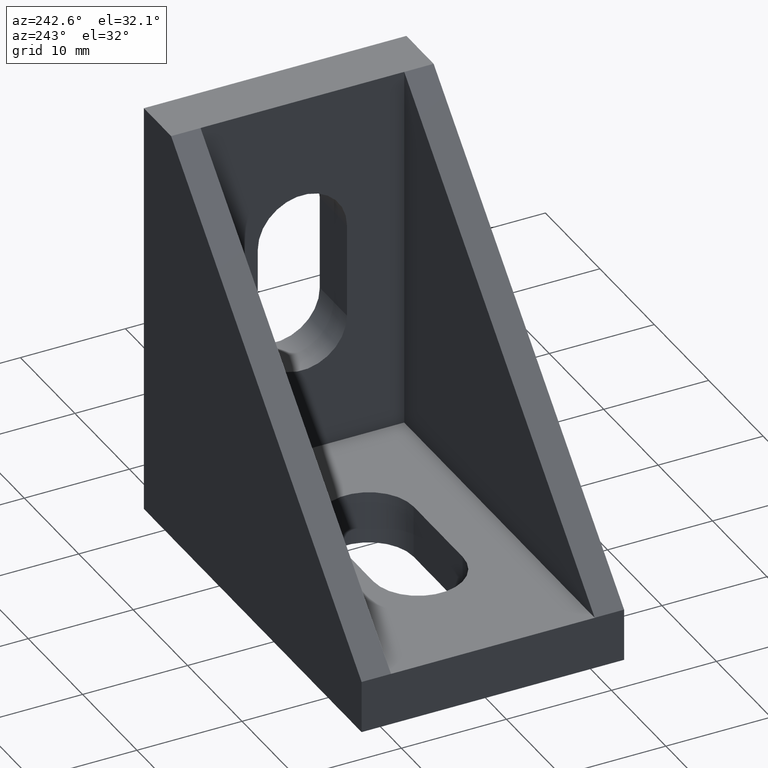
[diagram: clean part render]
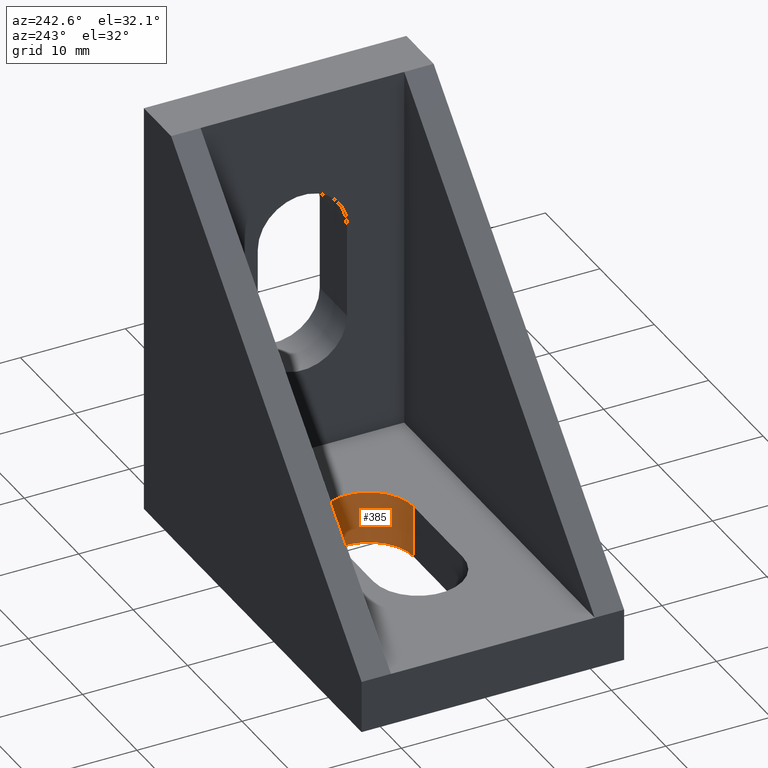
[diagram: same view with one face highlighted and labeled with its STEP entity id]
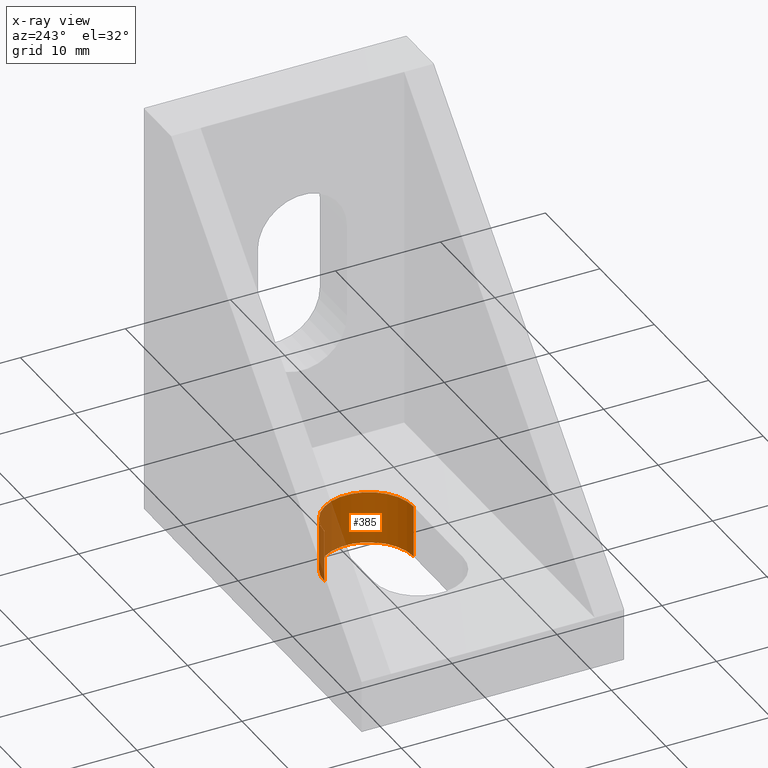
[diagram: x-ray of the same camera — body ghosted, the highlighted face saturated]
A machine part, auxiliary view. The second image highlights one B-rep face of the part: STEP entity #385.
The next image is the same camera in x-ray: the body ghosted, the highlighted face saturated — about 22% of this face is hidden behind the body in this view.
In plain terms, the highlighted cylindrical surface (partial cylindrical patch) has radius 4.25 mm, axis along (0, 0, -1).
Its self-contained STEP definition (entity closure, byte-faithful):
#39=FACE_OUTER_BOUND('',#59,.T.);
#59=EDGE_LOOP('',(#285,#286,#287,#288));
#87=LINE('',#586,#133);
#88=LINE('',#589,#134);
#133=VECTOR('',#482,10.);
#134=VECTOR('',#485,10.);
#175=CIRCLE('',#433,4.25);
#176=CIRCLE('',#434,4.25);
#187=VERTEX_POINT('',#582);
#188=VERTEX_POINT('',#583);
#189=VERTEX_POINT('',#585);
#190=VERTEX_POINT('',#587);
#227=EDGE_CURVE('',#187,#188,#175,.T.);
#228=EDGE_CURVE('',#187,#189,#87,.T.);
#229=EDGE_CURVE('',#190,#189,#176,.T.);
#230=EDGE_CURVE('',#188,#190,#88,.T.);
#285=ORIENTED_EDGE('',*,*,#227,.F.);
#286=ORIENTED_EDGE('',*,*,#228,.T.);
#287=ORIENTED_EDGE('',*,*,#229,.F.);
#288=ORIENTED_EDGE('',*,*,#230,.F.);
#379=CYLINDRICAL_SURFACE('',#432,4.25);
#385=ADVANCED_FACE('',(#39),#379,.F.);
#432=AXIS2_PLACEMENT_3D('',#581,#478,#479);
#433=AXIS2_PLACEMENT_3D('',#584,#480,#481);
#434=AXIS2_PLACEMENT_3D('',#588,#483,#484);
#478=DIRECTION('center_axis',(0.,0.,-1.));
#479=DIRECTION('ref_axis',(0.,-1.,0.));
#480=DIRECTION('center_axis',(0.,0.,-1.));
#481=DIRECTION('ref_axis',(0.,-1.,0.));
#482=DIRECTION('',(0.,0.,-1.));
#483=DIRECTION('center_axis',(0.,0.,1.));
#484=DIRECTION('ref_axis',(0.,-1.,0.));
#485=DIRECTION('',(0.,0.,-1.));
#581=CARTESIAN_POINT('Origin',(5.24999999990997,0.,6.99999999997226));
#582=CARTESIAN_POINT('',(5.24999999990997,4.25,4.99999999997226));
#583=CARTESIAN_POINT('',(5.24999999990997,-4.25,4.99999999997226));
#584=CARTESIAN_POINT('Origin',(5.24999999990997,0.,4.99999999997226));
#585=CARTESIAN_POINT('',(5.24999999990997,4.25,-2.77378120472349E-11));
#586=CARTESIAN_POINT('',(5.24999999990997,4.25,6.99999999997226));
#587=CARTESIAN_POINT('',(5.24999999990997,-4.25,-2.77378120472349E-11));
#588=CARTESIAN_POINT('Origin',(5.24999999990997,0.,-1.11022302462516E-15));
#589=CARTESIAN_POINT('',(5.24999999990997,-4.25,6.99999999997226));